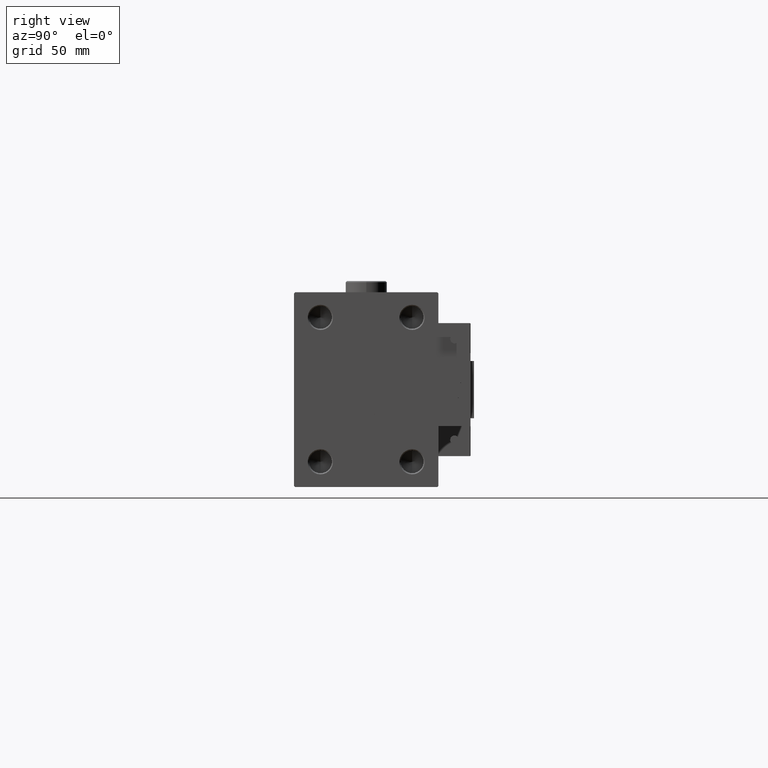
[diagram: clean part render]
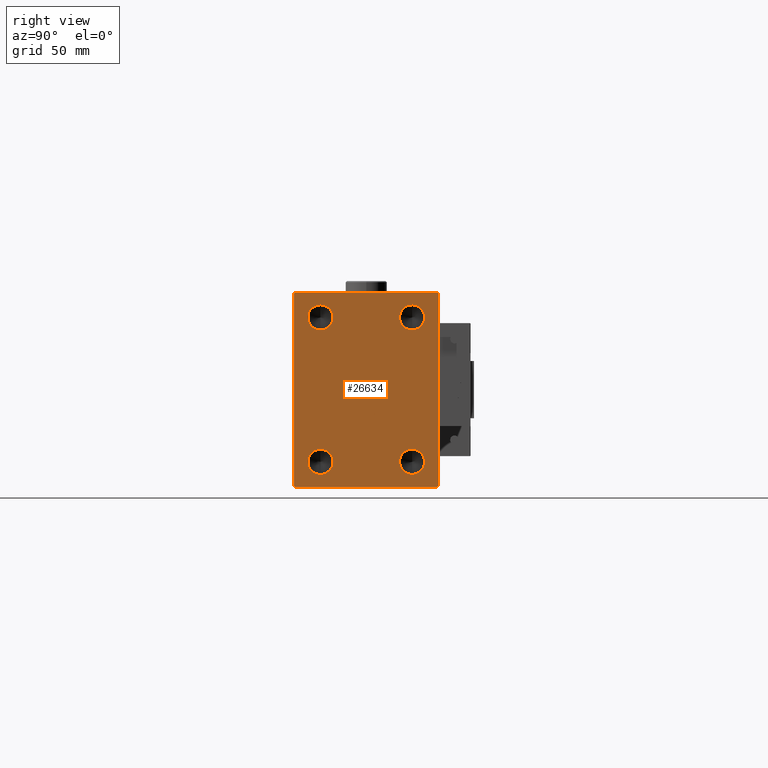
[diagram: same view with one face highlighted and labeled with its STEP entity id]
A machine part, right view. The second image highlights one B-rep face of the part: STEP entity #26634.
In plain terms, the highlighted planar face has unit normal (1, 0, 0).
Its self-contained STEP definition (entity closure, byte-faithful):
#315 = VERTEX_POINT ( 'NONE', #24826 ) ;
#574 = CARTESIAN_POINT ( 'NONE',  ( 163.0000000000000000, 31.00000000000000000, 42.49999999999999289 ) ) ;
#608 = EDGE_CURVE ( 'NONE', #24603, #8323, #11921, .T. ) ;
#775 = AXIS2_PLACEMENT_3D ( 'NONE', #1376, #5579, #35239 ) ;
#1376 = CARTESIAN_POINT ( 'NONE',  ( 163.0000000000000000, -20.00000000000000355, 31.50000000000000000 ) ) ;
#1414 = LINE ( 'NONE', #22123, #16630 ) ;
#1419 = ORIENTED_EDGE ( 'NONE', *, *, #21091, .T. ) ;
#1762 = FACE_BOUND ( 'NONE', #6807, .T. ) ;
#3058 = DIRECTION ( 'NONE',  ( -0.000000000000000000, 0.7071067811865425767, -0.7071067811865525687 ) ) ;
#3397 = DIRECTION ( 'NONE',  ( 0.000000000000000000, 0.000000000000000000, -1.000000000000000000 ) ) ;
#3567 = DIRECTION ( 'NONE',  ( 1.000000000000000000, -0.000000000000000000, -0.000000000000000000 ) ) ;
#3681 = CARTESIAN_POINT ( 'NONE',  ( 163.0000000000000000, 19.99999999999999645, -31.50000000000000000 ) ) ;
#4689 = CIRCLE ( 'NONE', #36834, 5.500000000000032863 ) ;
#5080 = CARTESIAN_POINT ( 'NONE',  ( 163.0000000000000000, -31.50000000000000000, 41.99999999999998579 ) ) ;
#5301 = DIRECTION ( 'NONE',  ( 1.000000000000000000, -0.000000000000000000, -0.000000000000000000 ) ) ;
#5439 = ORIENTED_EDGE ( 'NONE', *, *, #42400, .T. ) ;
#5579 = DIRECTION ( 'NONE',  ( 1.000000000000000000, -0.000000000000000000, -0.000000000000000000 ) ) ;
#5724 = CARTESIAN_POINT ( 'NONE',  ( 163.0000000000000000, -31.00000000000000000, 42.49999999999998579 ) ) ;
#5864 = DIRECTION ( 'NONE',  ( 0.000000000000000000, 0.000000000000000000, -1.000000000000000000 ) ) ;
#6237 = DIRECTION ( 'NONE',  ( 1.000000000000000000, 0.000000000000000000, 0.000000000000000000 ) ) ;
#6366 = VERTEX_POINT ( 'NONE', #5080 ) ;
#6807 = EDGE_LOOP ( 'NONE', ( #32850, #18629 ) ) ;
#7892 = AXIS2_PLACEMENT_3D ( 'NONE', #33783, #3567, #32945 ) ;
#7935 = VERTEX_POINT ( 'NONE', #38552 ) ;
#8248 = EDGE_CURVE ( 'NONE', #6366, #46045, #50246, .T. ) ;
#8323 = VERTEX_POINT ( 'NONE', #42402 ) ;
#8972 = EDGE_CURVE ( 'NONE', #7935, #45169, #39461, .T. ) ;
#9153 = FACE_BOUND ( 'NONE', #34398, .T. ) ;
#9349 = CARTESIAN_POINT ( 'NONE',  ( 163.0000000000000000, 31.50000000000000000, 42.49999999999999289 ) ) ;
#10222 = EDGE_CURVE ( 'NONE', #28750, #19436, #42253, .T. ) ;
#10266 = CARTESIAN_POINT ( 'NONE',  ( 163.0000000000000000, -20.00000000000000355, -37.00000000000003553 ) ) ;
#11921 = LINE ( 'NONE', #33169, #37445 ) ;
#12038 = CARTESIAN_POINT ( 'NONE',  ( 163.0000000000000000, 19.99999999999999645, -25.99999999999996447 ) ) ;
#12357 = CARTESIAN_POINT ( 'NONE',  ( 163.0000000000000000, 19.99999999999999645, -31.50000000000000000 ) ) ;
#14811 = CARTESIAN_POINT ( 'NONE',  ( 163.0000000000000000, -20.00000000000000355, -31.50000000000000000 ) ) ;
#16098 = ORIENTED_EDGE ( 'NONE', *, *, #35117, .T. ) ;
#16417 = ORIENTED_EDGE ( 'NONE', *, *, #43143, .F. ) ;
#16630 = VECTOR ( 'NONE', #35277, 1000.000000000000114 ) ;
#17541 = EDGE_LOOP ( 'NONE', ( #34805, #45303 ) ) ;
#17550 = PLANE ( 'NONE',  #22084 ) ;
#17738 = DIRECTION ( 'NONE',  ( 0.000000000000000000, -1.000000000000000000, -1.101411730778925171E-16 ) ) ;
#18574 = EDGE_CURVE ( 'NONE', #19436, #28750, #24551, .T. ) ;
#18629 = ORIENTED_EDGE ( 'NONE', *, *, #10222, .F. ) ;
#19125 = CARTESIAN_POINT ( 'NONE',  ( 163.0000000000000000, 19.99999999999999645, -37.00000000000003553 ) ) ;
#19436 = VERTEX_POINT ( 'NONE', #40549 ) ;
#20704 = VECTOR ( 'NONE', #37923, 1000.000000000000000 ) ;
#20984 = CARTESIAN_POINT ( 'NONE',  ( 163.0000000000000000, -20.00000000000000355, 25.99999999999996447 ) ) ;
#21035 = DIRECTION ( 'NONE',  ( 1.000000000000000000, -0.000000000000000000, -0.000000000000000000 ) ) ;
#21091 = EDGE_CURVE ( 'NONE', #46045, #315, #46159, .T. ) ;
#22084 = AXIS2_PLACEMENT_3D ( 'NONE', #35633, #6237, #39086 ) ;
#22123 = CARTESIAN_POINT ( 'NONE',  ( 163.0000000000000000, 36.75000000000000000, 36.75000000000000000 ) ) ;
#22490 = AXIS2_PLACEMENT_3D ( 'NONE', #26554, #5301, #52340 ) ;
#23031 = LINE ( 'NONE', #40102, #44663 ) ;
#23096 = EDGE_CURVE ( 'NONE', #45322, #23704, #54246, .T. ) ;
#23313 = CARTESIAN_POINT ( 'NONE',  ( 163.0000000000000000, 19.99999999999999645, 31.50000000000000000 ) ) ;
#23521 = DIRECTION ( 'NONE',  ( 0.000000000000000000, -0.7071067811865474617, -0.7071067811865474617 ) ) ;
#23704 = VERTEX_POINT ( 'NONE', #52725 ) ;
#24052 = EDGE_CURVE ( 'NONE', #37922, #31556, #1414, .T. ) ;
#24551 = CIRCLE ( 'NONE', #38883, 5.500000000000032863 ) ;
#24603 = VERTEX_POINT ( 'NONE', #38523 ) ;
#24752 = CARTESIAN_POINT ( 'NONE',  ( 163.0000000000000000, -31.50000000000000000, 42.49999999999998579 ) ) ;
#24826 = CARTESIAN_POINT ( 'NONE',  ( 163.0000000000000000, -31.00000000000000000, -42.50000000000000711 ) ) ;
#26554 = CARTESIAN_POINT ( 'NONE',  ( 163.0000000000000000, -20.00000000000000355, 31.50000000000000000 ) ) ;
#26634 = ADVANCED_FACE ( 'NONE', ( #43298, #27500, #1762, #9153, #44588 ), #17550, .T. ) ;
#27062 = VECTOR ( 'NONE', #37201, 1000.000000000000000 ) ;
#27500 = FACE_BOUND ( 'NONE', #33379, .T. ) ;
#27652 = CIRCLE ( 'NONE', #42100, 5.500000000000032863 ) ;
#27934 = DIRECTION ( 'NONE',  ( 1.000000000000000000, -0.000000000000000000, -0.000000000000000000 ) ) ;
#28750 = VERTEX_POINT ( 'NONE', #10266 ) ;
#29034 = VERTEX_POINT ( 'NONE', #5724 ) ;
#30070 = AXIS2_PLACEMENT_3D ( 'NONE', #23313, #40382, #52737 ) ;
#30738 = ORIENTED_EDGE ( 'NONE', *, *, #8972, .F. ) ;
#31033 = CARTESIAN_POINT ( 'NONE',  ( 163.0000000000000000, -31.50000000000000000, -42.00000000000000000 ) ) ;
#31510 = VECTOR ( 'NONE', #23521, 1000.000000000000114 ) ;
#31556 = VERTEX_POINT ( 'NONE', #574 ) ;
#32011 = CIRCLE ( 'NONE', #7892, 5.500000000000032863 ) ;
#32308 = ORIENTED_EDGE ( 'NONE', *, *, #40728, .T. ) ;
#32850 = ORIENTED_EDGE ( 'NONE', *, *, #18574, .F. ) ;
#32945 = DIRECTION ( 'NONE',  ( 0.000000000000000000, 0.000000000000000000, -1.000000000000000000 ) ) ;
#32997 = LINE ( 'NONE', #55146, #27062 ) ;
#33169 = CARTESIAN_POINT ( 'NONE',  ( 163.0000000000000000, 36.75000000000001421, -36.75000000000001421 ) ) ;
#33379 = EDGE_LOOP ( 'NONE', ( #30738, #16417 ) ) ;
#33783 = CARTESIAN_POINT ( 'NONE',  ( 163.0000000000000000, 19.99999999999999645, 31.50000000000000000 ) ) ;
#33828 = CARTESIAN_POINT ( 'NONE',  ( 163.0000000000000000, -36.75000000000022737, -36.74999999999971578 ) ) ;
#34171 = DIRECTION ( 'NONE',  ( 1.000000000000000000, -0.000000000000000000, -0.000000000000000000 ) ) ;
#34398 = EDGE_LOOP ( 'NONE', ( #48788, #40211 ) ) ;
#34805 = ORIENTED_EDGE ( 'NONE', *, *, #23096, .F. ) ;
#35005 = EDGE_CURVE ( 'NONE', #31556, #29034, #52167, .T. ) ;
#35117 = EDGE_CURVE ( 'NONE', #8323, #37922, #23031, .T. ) ;
#35239 = DIRECTION ( 'NONE',  ( 0.000000000000000000, 0.000000000000000000, -1.000000000000000000 ) ) ;
#35277 = DIRECTION ( 'NONE',  ( -0.000000000000000000, -0.7071067811865474617, 0.7071067811865474617 ) ) ;
#35301 = EDGE_CURVE ( 'NONE', #40796, #40309, #27652, .T. ) ;
#35633 = CARTESIAN_POINT ( 'NONE',  ( 163.0000000000000000, 0.000000000000000000, 0.000000000000000000 ) ) ;
#35777 = CARTESIAN_POINT ( 'NONE',  ( 163.0000000000000000, 19.99999999999999645, 37.00000000000003553 ) ) ;
#35795 = DIRECTION ( 'NONE',  ( 1.000000000000000000, -0.000000000000000000, -0.000000000000000000 ) ) ;
#36834 = AXIS2_PLACEMENT_3D ( 'NONE', #12357, #34171, #51267 ) ;
#37201 = DIRECTION ( 'NONE',  ( 0.000000000000000000, 1.000000000000000000, 0.000000000000000000 ) ) ;
#37445 = VECTOR ( 'NONE', #53928, 1000.000000000000114 ) ;
#37922 = VERTEX_POINT ( 'NONE', #51050 ) ;
#37923 = DIRECTION ( 'NONE',  ( 0.000000000000000000, 0.000000000000000000, -1.000000000000000000 ) ) ;
#38175 = ORIENTED_EDGE ( 'NONE', *, *, #35005, .T. ) ;
#38523 = CARTESIAN_POINT ( 'NONE',  ( 163.0000000000000000, 31.00000000000001421, -42.50000000000000711 ) ) ;
#38552 = CARTESIAN_POINT ( 'NONE',  ( 163.0000000000000000, -20.00000000000000355, 37.00000000000003553 ) ) ;
#38883 = AXIS2_PLACEMENT_3D ( 'NONE', #39451, #27934, #52613 ) ;
#39086 = DIRECTION ( 'NONE',  ( 0.000000000000000000, 0.000000000000000000, -1.000000000000000000 ) ) ;
#39451 = CARTESIAN_POINT ( 'NONE',  ( 163.0000000000000000, -20.00000000000000355, -31.50000000000000000 ) ) ;
#39461 = CIRCLE ( 'NONE', #22490, 5.500000000000032863 ) ;
#40102 = CARTESIAN_POINT ( 'NONE',  ( 163.0000000000000000, 31.50000000000001421, -42.50000000000000711 ) ) ;
#40211 = ORIENTED_EDGE ( 'NONE', *, *, #54400, .F. ) ;
#40309 = VERTEX_POINT ( 'NONE', #19125 ) ;
#40382 = DIRECTION ( 'NONE',  ( 1.000000000000000000, -0.000000000000000000, -0.000000000000000000 ) ) ;
#40549 = CARTESIAN_POINT ( 'NONE',  ( 163.0000000000000000, -20.00000000000000355, -25.99999999999996447 ) ) ;
#40728 = EDGE_CURVE ( 'NONE', #29034, #6366, #41427, .T. ) ;
#40796 = VERTEX_POINT ( 'NONE', #12038 ) ;
#40911 = EDGE_LOOP ( 'NONE', ( #38175, #32308, #51379, #1419, #5439, #49310, #16098, #41312 ) ) ;
#41312 = ORIENTED_EDGE ( 'NONE', *, *, #24052, .T. ) ;
#41427 = LINE ( 'NONE', #48998, #31510 ) ;
#42100 = AXIS2_PLACEMENT_3D ( 'NONE', #3681, #21035, #3397 ) ;
#42253 = CIRCLE ( 'NONE', #50285, 5.500000000000032863 ) ;
#42400 = EDGE_CURVE ( 'NONE', #315, #24603, #32997, .T. ) ;
#42402 = CARTESIAN_POINT ( 'NONE',  ( 163.0000000000000000, 31.50000000000001421, -42.00000000000000711 ) ) ;
#42555 = VECTOR ( 'NONE', #3058, 999.9999999999998863 ) ;
#43143 = EDGE_CURVE ( 'NONE', #45169, #7935, #49918, .T. ) ;
#43233 = EDGE_CURVE ( 'NONE', #23704, #45322, #32011, .T. ) ;
#43298 = FACE_BOUND ( 'NONE', #17541, .T. ) ;
#44588 = FACE_OUTER_BOUND ( 'NONE', #40911, .T. ) ;
#44663 = VECTOR ( 'NONE', #49603, 1000.000000000000000 ) ;
#45169 = VERTEX_POINT ( 'NONE', #20984 ) ;
#45303 = ORIENTED_EDGE ( 'NONE', *, *, #43233, .F. ) ;
#45322 = VERTEX_POINT ( 'NONE', #35777 ) ;
#46045 = VERTEX_POINT ( 'NONE', #31033 ) ;
#46159 = LINE ( 'NONE', #33828, #42555 ) ;
#47335 = VECTOR ( 'NONE', #17738, 1000.000000000000000 ) ;
#48788 = ORIENTED_EDGE ( 'NONE', *, *, #35301, .F. ) ;
#48998 = CARTESIAN_POINT ( 'NONE',  ( 163.0000000000000000, -36.74999999999999289, 36.74999999999999289 ) ) ;
#49310 = ORIENTED_EDGE ( 'NONE', *, *, #608, .T. ) ;
#49603 = DIRECTION ( 'NONE',  ( 0.000000000000000000, -1.632680918566406547E-16, 1.000000000000000000 ) ) ;
#49918 = CIRCLE ( 'NONE', #775, 5.500000000000032863 ) ;
#50246 = LINE ( 'NONE', #24752, #20704 ) ;
#50285 = AXIS2_PLACEMENT_3D ( 'NONE', #14811, #35795, #5864 ) ;
#51050 = CARTESIAN_POINT ( 'NONE',  ( 163.0000000000000000, 31.50000000000000000, 41.99999999999999289 ) ) ;
#51267 = DIRECTION ( 'NONE',  ( 0.000000000000000000, 0.000000000000000000, -1.000000000000000000 ) ) ;
#51379 = ORIENTED_EDGE ( 'NONE', *, *, #8248, .T. ) ;
#52167 = LINE ( 'NONE', #9349, #47335 ) ;
#52340 = DIRECTION ( 'NONE',  ( 0.000000000000000000, 0.000000000000000000, -1.000000000000000000 ) ) ;
#52613 = DIRECTION ( 'NONE',  ( 0.000000000000000000, 0.000000000000000000, -1.000000000000000000 ) ) ;
#52725 = CARTESIAN_POINT ( 'NONE',  ( 163.0000000000000000, 19.99999999999999645, 25.99999999999996447 ) ) ;
#52737 = DIRECTION ( 'NONE',  ( 0.000000000000000000, 0.000000000000000000, -1.000000000000000000 ) ) ;
#53928 = DIRECTION ( 'NONE',  ( -0.000000000000000000, 0.7071067811865474617, 0.7071067811865474617 ) ) ;
#54246 = CIRCLE ( 'NONE', #30070, 5.500000000000032863 ) ;
#54400 = EDGE_CURVE ( 'NONE', #40309, #40796, #4689, .T. ) ;
#55146 = CARTESIAN_POINT ( 'NONE',  ( 163.0000000000000000, -31.50000000000000000, -42.50000000000000711 ) ) ;